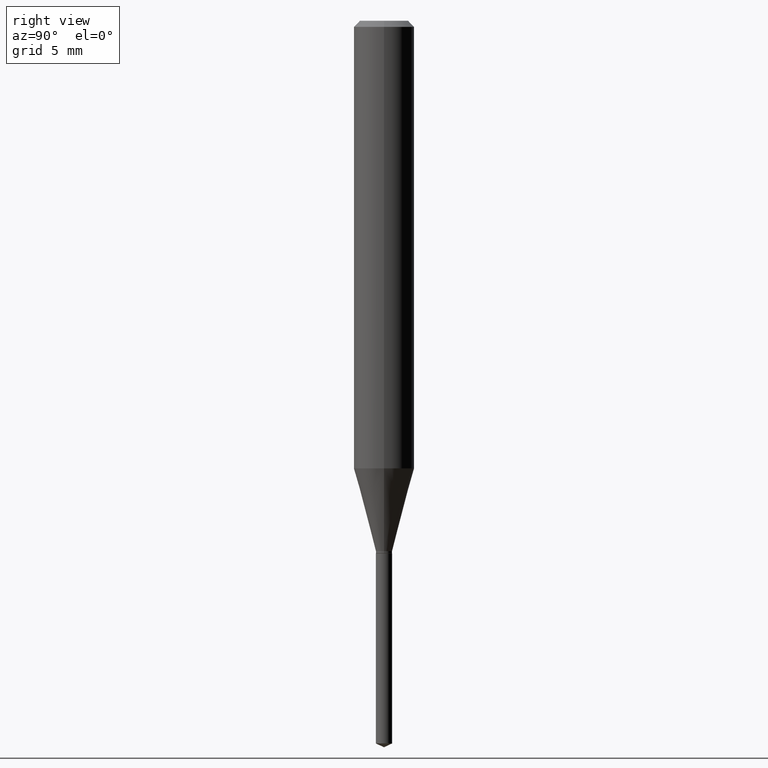
[diagram: clean part render]
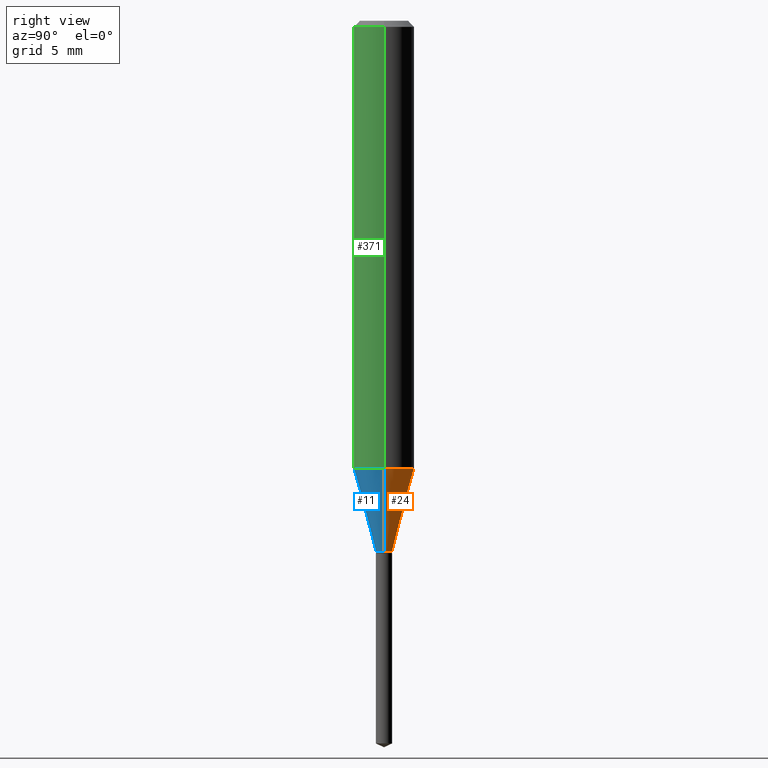
[diagram: same view with three faces highlighted in distinct colors, each labeled with its STEP entity id]
A machine part, right view with three faces highlighted in distinct colors.
Their STEP definitions:

[orange] entity #24 — the highlighted conical surface has half-angle 15 deg.
#13 = VERTEX_POINT ( 'NONE', #167 ) ;
#24 = ADVANCED_FACE ( 'NONE', ( #223 ), #415, .T. ) ;
#36 = CARTESIAN_POINT ( 'NONE',  ( 2.677788342772724596E-29, -3.823172066033244277E-15, -1.094999999999999973 ) ) ;
#42 = VECTOR ( 'NONE', #140, 39.37007874015747433 ) ;
#52 = CARTESIAN_POINT ( 'NONE',  ( 2.260245759912620669E-29, -3.227031917959708248E-15, -0.9242586755537238741 ) ) ;
#70 = LINE ( 'NONE', #331, #42 ) ;
#73 = CIRCLE ( 'NONE', #351, 0.01674999999999999059 ) ;
#89 = CARTESIAN_POINT ( 'NONE',  ( 0.01674999999999999059, -3.940136690884488960E-15, -1.094999999999999973 ) ) ;
#93 = EDGE_CURVE ( 'NONE', #321, #13, #73, .T. ) ;
#103 = ORIENTED_EDGE ( 'NONE', *, *, #416, .T. ) ;
#113 = CIRCLE ( 'NONE', #287, 0.06250000000000012490 ) ;
#140 = DIRECTION ( 'NONE',  ( 0.2588190451025213501, 1.565188264969621968E-15, 0.9659258262890682012 ) ) ;
#167 = CARTESIAN_POINT ( 'NONE',  ( -0.01674999999999999059, -3.712011990805825142E-15, -1.094999999999999973 ) ) ;
#170 = VERTEX_POINT ( 'NONE', #297 ) ;
#178 = DIRECTION ( 'NONE',  ( -2.445468806185136597E-29, 3.491481338843145583E-15, 1.000000000000000000 ) ) ;
#185 = DIRECTION ( 'NONE',  ( -2.445468806185136597E-29, 3.491481338843145583E-15, 1.000000000000000000 ) ) ;
#201 = DIRECTION ( 'NONE',  ( 1.000000000000000000, -6.982962677686264344E-15, 0.000000000000000000 ) ) ;
#204 = EDGE_LOOP ( 'NONE', ( #254, #103, #426, #403 ) ) ;
#211 = LINE ( 'NONE', #449, #366 ) ;
#223 = FACE_OUTER_BOUND ( 'NONE', #204, .T. ) ;
#231 = CARTESIAN_POINT ( 'NONE',  ( -0.06250000000000012490, -2.782942708109644843E-15, -0.9242586755537238741 ) ) ;
#254 = ORIENTED_EDGE ( 'NONE', *, *, #93, .T. ) ;
#287 = AXIS2_PLACEMENT_3D ( 'NONE', #52, #320, #201 ) ;
#288 = VERTEX_POINT ( 'NONE', #231 ) ;
#297 = CARTESIAN_POINT ( 'NONE',  ( 0.06250000000000012490, -3.663467085315101101E-15, -0.9242586755537238741 ) ) ;
#320 = DIRECTION ( 'NONE',  ( -2.445468806185136597E-29, 3.491481338843145583E-15, 1.000000000000000000 ) ) ;
#321 = VERTEX_POINT ( 'NONE', #89 ) ;
#323 = EDGE_CURVE ( 'NONE', #170, #288, #113, .T. ) ;
#331 = CARTESIAN_POINT ( 'NONE',  ( 0.01674999999999999059, -3.940136690884488960E-15, -1.094999999999999973 ) ) ;
#351 = AXIS2_PLACEMENT_3D ( 'NONE', #454, #178, #414 ) ;
#366 = VECTOR ( 'NONE', #367, 39.37007874015747433 ) ;
#367 = DIRECTION ( 'NONE',  ( -0.2588190451025213501, 5.211531920934551042E-15, 0.9659258262890682012 ) ) ;
#377 = EDGE_CURVE ( 'NONE', #321, #170, #70, .T. ) ;
#403 = ORIENTED_EDGE ( 'NONE', *, *, #377, .F. ) ;
#411 = DIRECTION ( 'NONE',  ( 1.000000000000000000, -6.982962677686264344E-15, 0.000000000000000000 ) ) ;
#414 = DIRECTION ( 'NONE',  ( 1.000000000000000000, -6.982962677686264344E-15, 0.000000000000000000 ) ) ;
#415 = CONICAL_SURFACE ( 'NONE', #445, 0.01674999999999999059, 0.2617993877991500740 ) ;
#416 = EDGE_CURVE ( 'NONE', #13, #288, #211, .T. ) ;
#426 = ORIENTED_EDGE ( 'NONE', *, *, #323, .F. ) ;
#445 = AXIS2_PLACEMENT_3D ( 'NONE', #36, #185, #411 ) ;
#449 = CARTESIAN_POINT ( 'NONE',  ( -0.01674999999999999059, -3.704156157793427982E-15, -1.094999999999999973 ) ) ;
#454 = CARTESIAN_POINT ( 'NONE',  ( 2.677788342772724596E-29, -3.823172066033244277E-15, -1.094999999999999973 ) ) ;

[blue] entity #11 — the highlighted conical surface has half-angle 15 deg.
#11 = ADVANCED_FACE ( 'NONE', ( #202 ), #342, .T. ) ;
#13 = VERTEX_POINT ( 'NONE', #167 ) ;
#27 = ORIENTED_EDGE ( 'NONE', *, *, #468, .T. ) ;
#33 = AXIS2_PLACEMENT_3D ( 'NONE', #305, #418, #420 ) ;
#42 = VECTOR ( 'NONE', #140, 39.37007874015747433 ) ;
#70 = LINE ( 'NONE', #331, #42 ) ;
#89 = CARTESIAN_POINT ( 'NONE',  ( 0.01674999999999999059, -3.940136690884488960E-15, -1.094999999999999973 ) ) ;
#109 = DIRECTION ( 'NONE',  ( 1.000000000000000000, -6.982962677686264344E-15, 0.000000000000000000 ) ) ;
#123 = AXIS2_PLACEMENT_3D ( 'NONE', #173, #401, #360 ) ;
#140 = DIRECTION ( 'NONE',  ( 0.2588190451025213501, 1.565188264969621968E-15, 0.9659258262890682012 ) ) ;
#149 = CIRCLE ( 'NONE', #188, 0.06250000000000012490 ) ;
#166 = EDGE_LOOP ( 'NONE', ( #408, #27, #318, #402 ) ) ;
#167 = CARTESIAN_POINT ( 'NONE',  ( -0.01674999999999999059, -3.712011990805825142E-15, -1.094999999999999973 ) ) ;
#170 = VERTEX_POINT ( 'NONE', #297 ) ;
#173 = CARTESIAN_POINT ( 'NONE',  ( 2.677788342772724596E-29, -3.823172066033244277E-15, -1.094999999999999973 ) ) ;
#176 = EDGE_CURVE ( 'NONE', #288, #170, #149, .T. ) ;
#188 = AXIS2_PLACEMENT_3D ( 'NONE', #450, #378, #109 ) ;
#202 = FACE_OUTER_BOUND ( 'NONE', #166, .T. ) ;
#203 = CIRCLE ( 'NONE', #33, 0.01674999999999999059 ) ;
#211 = LINE ( 'NONE', #449, #366 ) ;
#231 = CARTESIAN_POINT ( 'NONE',  ( -0.06250000000000012490, -2.782942708109644843E-15, -0.9242586755537238741 ) ) ;
#288 = VERTEX_POINT ( 'NONE', #231 ) ;
#297 = CARTESIAN_POINT ( 'NONE',  ( 0.06250000000000012490, -3.663467085315101101E-15, -0.9242586755537238741 ) ) ;
#305 = CARTESIAN_POINT ( 'NONE',  ( 2.677788342772724596E-29, -3.823172066033244277E-15, -1.094999999999999973 ) ) ;
#318 = ORIENTED_EDGE ( 'NONE', *, *, #377, .T. ) ;
#321 = VERTEX_POINT ( 'NONE', #89 ) ;
#331 = CARTESIAN_POINT ( 'NONE',  ( 0.01674999999999999059, -3.940136690884488960E-15, -1.094999999999999973 ) ) ;
#342 = CONICAL_SURFACE ( 'NONE', #123, 0.01674999999999999059, 0.2617993877991500740 ) ;
#360 = DIRECTION ( 'NONE',  ( 1.000000000000000000, -6.982962677686264344E-15, 0.000000000000000000 ) ) ;
#366 = VECTOR ( 'NONE', #367, 39.37007874015747433 ) ;
#367 = DIRECTION ( 'NONE',  ( -0.2588190451025213501, 5.211531920934551042E-15, 0.9659258262890682012 ) ) ;
#377 = EDGE_CURVE ( 'NONE', #321, #170, #70, .T. ) ;
#378 = DIRECTION ( 'NONE',  ( -2.445468806185136597E-29, 3.491481338843145583E-15, 1.000000000000000000 ) ) ;
#401 = DIRECTION ( 'NONE',  ( -2.445468806185136597E-29, 3.491481338843145583E-15, 1.000000000000000000 ) ) ;
#402 = ORIENTED_EDGE ( 'NONE', *, *, #176, .F. ) ;
#408 = ORIENTED_EDGE ( 'NONE', *, *, #416, .F. ) ;
#416 = EDGE_CURVE ( 'NONE', #13, #288, #211, .T. ) ;
#418 = DIRECTION ( 'NONE',  ( -2.445468806185136597E-29, 3.491481338843145583E-15, 1.000000000000000000 ) ) ;
#420 = DIRECTION ( 'NONE',  ( 1.000000000000000000, -6.982962677686264344E-15, 0.000000000000000000 ) ) ;
#449 = CARTESIAN_POINT ( 'NONE',  ( -0.01674999999999999059, -3.704156157793427982E-15, -1.094999999999999973 ) ) ;
#450 = CARTESIAN_POINT ( 'NONE',  ( 2.260245759912620669E-29, -3.227031917959708248E-15, -0.9242586755537238741 ) ) ;
#468 = EDGE_CURVE ( 'NONE', #13, #321, #203, .T. ) ;

[green] entity #371 — the highlighted cylindrical surface (edge-blend (fillet) strip) has radius 1.5875 mm, axis along (-0, 0, 1).
#22 = ORIENTED_EDGE ( 'NONE', *, *, #176, .T. ) ;
#30 = CARTESIAN_POINT ( 'NONE',  ( 0.06250000000000000000, -4.800786840909312308E-16, -0.01250000000000008223 ) ) ;
#54 = DIRECTION ( 'NONE',  ( -2.445468806185136877E-29, 3.491481338843145188E-15, 1.000000000000000000 ) ) ;
#72 = EDGE_CURVE ( 'NONE', #250, #422, #224, .T. ) ;
#92 = ORIENTED_EDGE ( 'NONE', *, *, #350, .F. ) ;
#94 = LINE ( 'NONE', #110, #247 ) ;
#109 = DIRECTION ( 'NONE',  ( 1.000000000000000000, -6.982962677686264344E-15, 0.000000000000000000 ) ) ;
#110 = CARTESIAN_POINT ( 'NONE',  ( 0.06250000000000005551, -4.364351673553921131E-16, 3.047610484872463023E-30 ) ) ;
#129 = VECTOR ( 'NONE', #54, 39.37007874015748143 ) ;
#132 = EDGE_LOOP ( 'NONE', ( #92, #22, #475, #437 ) ) ;
#147 = DIRECTION ( 'NONE',  ( 1.000000000000000000, -6.982962677686266711E-15, 0.000000000000000000 ) ) ;
#149 = CIRCLE ( 'NONE', #188, 0.06250000000000012490 ) ;
#165 = CARTESIAN_POINT ( 'NONE',  ( 0.000000000000000000, 0.000000000000000000, 0.000000000000000000 ) ) ;
#170 = VERTEX_POINT ( 'NONE', #297 ) ;
#176 = EDGE_CURVE ( 'NONE', #288, #170, #149, .T. ) ;
#188 = AXIS2_PLACEMENT_3D ( 'NONE', #450, #378, #109 ) ;
#192 = CARTESIAN_POINT ( 'NONE',  ( -0.06250000000000000000, -1.191248507497560105E-15, -0.01250000000000008223 ) ) ;
#224 = CIRCLE ( 'NONE', #373, 0.06250000000000000000 ) ;
#226 = AXIS2_PLACEMENT_3D ( 'NONE', #165, #476, #409 ) ;
#231 = CARTESIAN_POINT ( 'NONE',  ( -0.06250000000000012490, -2.782942708109644843E-15, -0.9242586755537238741 ) ) ;
#240 = CARTESIAN_POINT ( 'NONE',  ( -0.06250000000000005551, 4.440892098500630106E-16, -3.074334431409318916E-30 ) ) ;
#247 = VECTOR ( 'NONE', #395, 39.37007874015748143 ) ;
#250 = VERTEX_POINT ( 'NONE', #192 ) ;
#288 = VERTEX_POINT ( 'NONE', #231 ) ;
#297 = CARTESIAN_POINT ( 'NONE',  ( 0.06250000000000012490, -3.663467085315101101E-15, -0.9242586755537238741 ) ) ;
#316 = CYLINDRICAL_SURFACE ( 'NONE', #226, 0.06250000000000005551 ) ;
#334 = EDGE_CURVE ( 'NONE', #170, #422, #94, .T. ) ;
#338 = CARTESIAN_POINT ( 'NONE',  ( 3.056836007731440977E-31, -4.364351673553961068E-17, -0.01250000000000008223 ) ) ;
#341 = DIRECTION ( 'NONE',  ( -2.445468806185136597E-29, 3.491481338843145583E-15, 1.000000000000000000 ) ) ;
#350 = EDGE_CURVE ( 'NONE', #288, #250, #432, .T. ) ;
#371 = ADVANCED_FACE ( 'NONE', ( #444 ), #316, .T. ) ;
#373 = AXIS2_PLACEMENT_3D ( 'NONE', #338, #341, #147 ) ;
#378 = DIRECTION ( 'NONE',  ( -2.445468806185136597E-29, 3.491481338843145583E-15, 1.000000000000000000 ) ) ;
#395 = DIRECTION ( 'NONE',  ( -2.445468806185136877E-29, 3.491481338843145188E-15, 1.000000000000000000 ) ) ;
#409 = DIRECTION ( 'NONE',  ( 1.000000000000000000, -6.982962677686267499E-15, 4.876176775795936353E-29 ) ) ;
#422 = VERTEX_POINT ( 'NONE', #30 ) ;
#432 = LINE ( 'NONE', #240, #129 ) ;
#437 = ORIENTED_EDGE ( 'NONE', *, *, #72, .F. ) ;
#444 = FACE_OUTER_BOUND ( 'NONE', #132, .T. ) ;
#450 = CARTESIAN_POINT ( 'NONE',  ( 2.260245759912620669E-29, -3.227031917959708248E-15, -0.9242586755537238741 ) ) ;
#475 = ORIENTED_EDGE ( 'NONE', *, *, #334, .T. ) ;
#476 = DIRECTION ( 'NONE',  ( -2.445468806185136597E-29, 3.491481338843145583E-15, 1.000000000000000000 ) ) ;